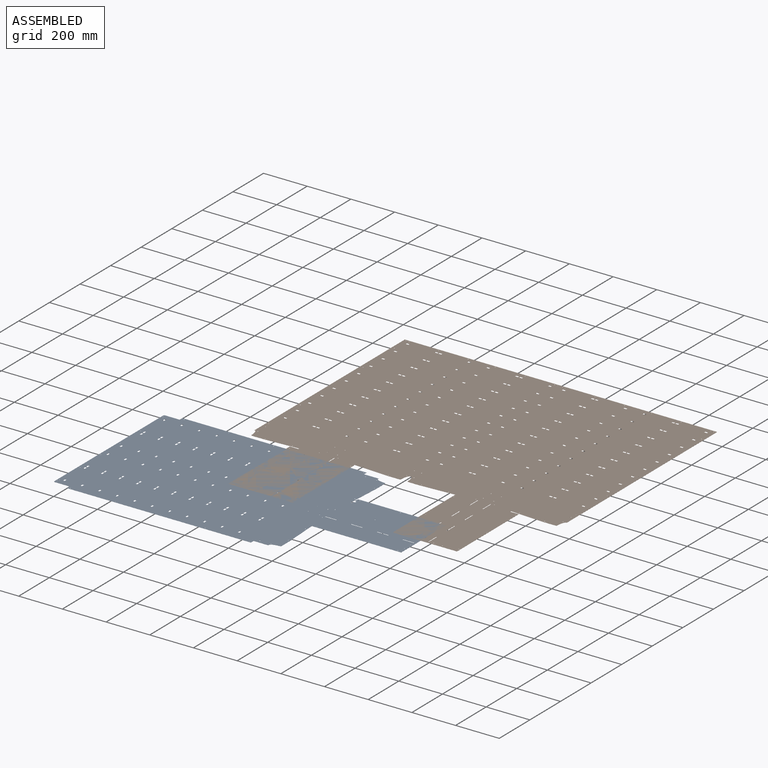
[diagram: assembled view]
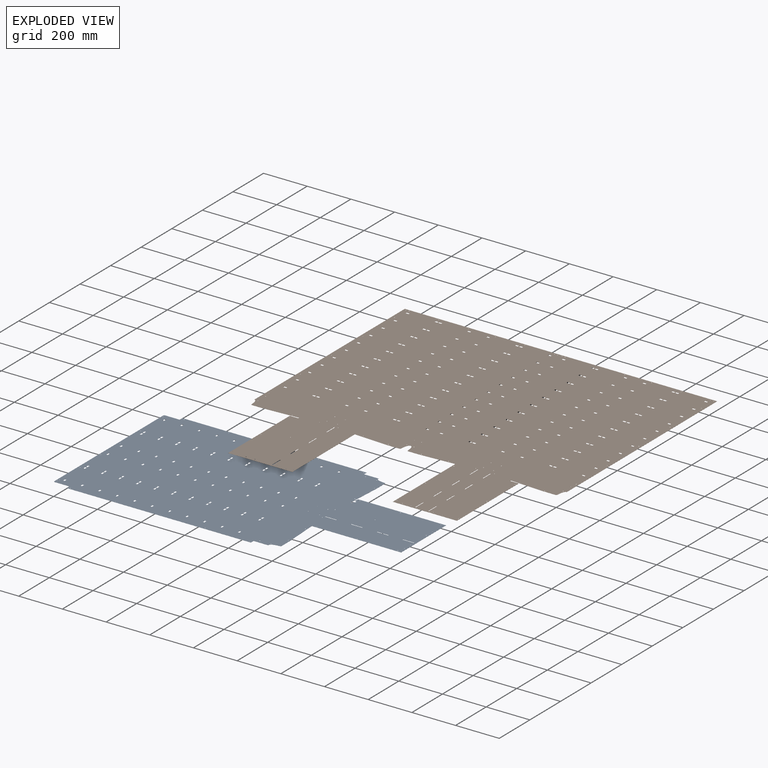
[diagram: exploded view]
GUIDED TOUR — FREECAD ASSEMBLY "composit_full_size3_composit_sink_fix"

This assembly has 2 components, labeled P0..P1 below (a component is one placed body or linked part; the same part can appear more than once), held together by 0 modeled joints plus 1 derived contact edge. A joint is a constraint between two components; its type names the relative motion it leaves free:
  CONTACT — a derived adjacency edge — the two components touch in the source model (clearance under 2% of the assembly's diagonal); it is measured from the geometry, not a modeled constraint.
Axis/direction vectors are unit vectors and 'through' points are millimeter coordinates, both in the assembly's world frame.

MATES
  1. CONTACT "contact_0_1": P0 <-> P1, contact direction (0.000, 0.000, 1.000) through (-684.06, 180.67, 0.30) mm (derived from contact, not a modeled constraint)

ASSEMBLY ORDER
  1. P1 — the base component [order verified]
  2. P0 [order verified]
Order-tag legend:
  [order verified] — this step's position reverses a verified removal order: the component was checked to insert without passing through the ones already placed.

Of the 2 components, 2 carry a construction recipe — the FreeCAD feature program (sketches with constraints, then the solid features that consume them) that regenerates the part from scratch, quoted from this document or from the linked companion document it references; the rest are supplied as boundary geometry only. The tour below walks the components in assembly order: each is shown spotlighted twice — in the assembled view, then in the exploded view, where a leader line traces a displaced component back to its assembled socket (components that stay in place when exploded have no leader line; saturated green if recipe-attached, orange if geometry-only; every other component desaturated gray) — followed by its recipe or geometry summary and the mates that hold it.
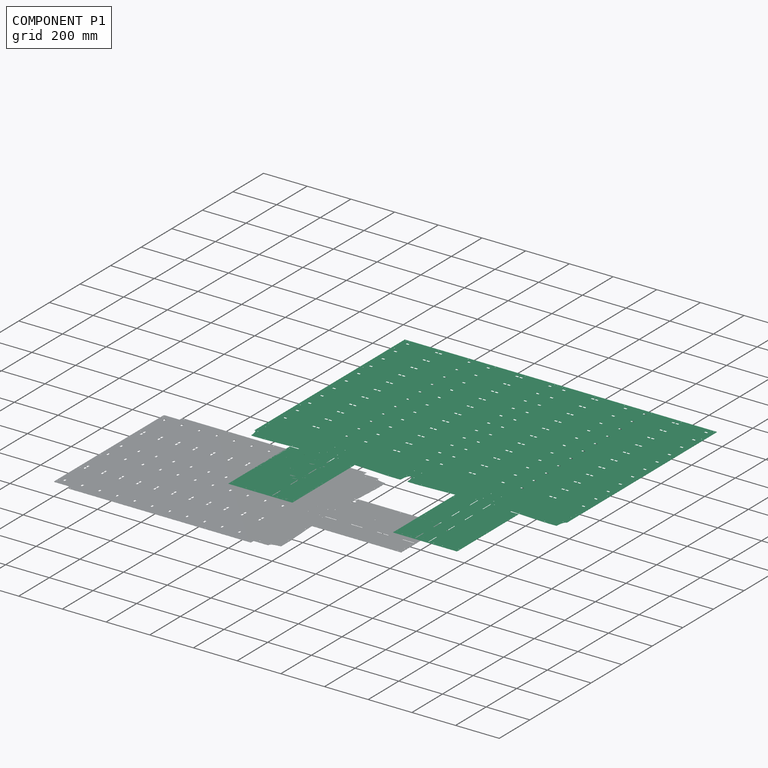
[diagram: component P1 — assembled]
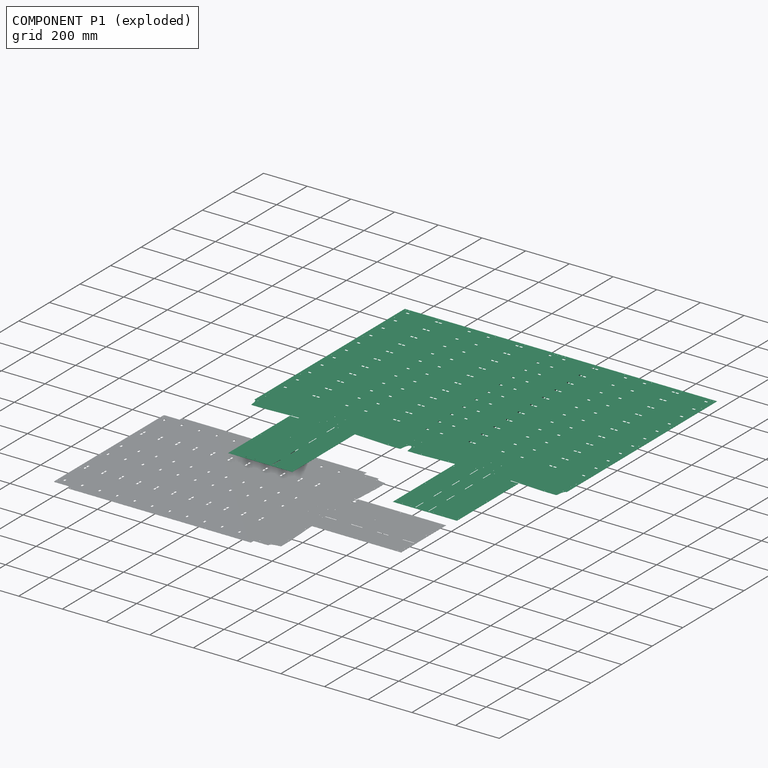
[diagram: component P1 — exploded]
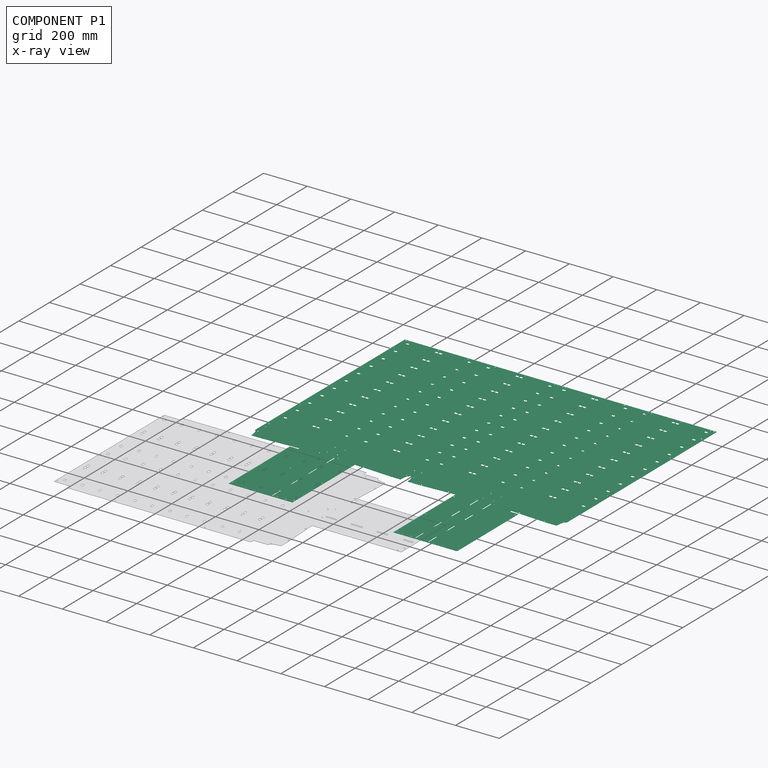
[diagram: component P1 — x-ray view]
COMPONENT P1 — recipe-attached ("part2_body", modeled in this document).
Held by: resting contact with P0 (derived edge).
Construction recipe (the document's own serialized feature program — sketch geometry with constraints, then the solid features built on it; lengths are millimeters unless a unit is written):

FEATURE [PartDesign::FeatureBase] BaseFeature001
  BaseFeature = -> Unfold
  Placement = pos=(0,0,351.872) rot=(0.377964,0.654654,0.654654;3.86433rad)
  expr: BaseFeature = <<part2_unfold>>._self
  expr: Placement = .BaseFeature.Placement
FEATURE [PartDesign::SubShapeBinder] Binder
  BindCopyOnChange = 0
  BindMode = 0
  ClaimChildren = false
  Context = -> Body001 [Binder.]
  Fuse = false
  MakeFace = true
  OffsetFill = false
  OffsetIntersection = false
  OffsetJoinType = 0
  OffsetOpenResult = false
  PartialLoad = false
  Relative = true
  Support = -> [Link020[Edge8]]
  _Version = 2
FEATURE [PartDesign::Plane] DatumPlane
  AttachmentOffset = pos=(0,0,0) rot=(0,1,0;1.5708rad)
  Length = 1721.32
  MapMode = 7
  Placement = pos=(-357.54,1428,0) rot=(-0.57735,0.57735,0.57735;4.18879rad)
  ResizeMode = 0
  Support = -> [Binder]
  Width = 1507.11
FEATURE [Sketcher::SketchObject] Sketch002
  ExternalGeometry = -> [BaseFeature001]
  FullyConstrained = true
  MapMode = 5
  Support = -> [XY_Plane001]
  sketch-geometry (4):
    g0: Circle CenterX=23.47 CenterY=444 CenterZ=0 NormalX=0 NormalY=0 NormalZ=1 AngleXU=0 Radius=1.7
    g1: Circle CenterX=23.47 CenterY=494 CenterZ=0 NormalX=0 NormalY=0 NormalZ=1 AngleXU=0 Radius=1.7
    g2: Circle CenterX=341.123 CenterY=444 CenterZ=0 NormalX=0 NormalY=0 NormalZ=1 AngleXU=0 Radius=1.7
    g3: Circle CenterX=341.123 CenterY=494 CenterZ=0 NormalX=0 NormalY=0 NormalZ=1 AngleXU=0 Radius=1.7
  constraints (12):
    c: DistanceX(g-6,g0) = -2.4
    c: Horizontal(g-6,g0)
    c: Horizontal(g-3,g1)
    c: Vertical(g0,g1)
    c: DistanceX(g-5,g2) = -2
    c: Horizontal(g-5,g2)
    c: Vertical(g2,g3)
    c: Horizontal(g-4,g3)
    c: Equal(g-6,g0)
    c: Equal(g0,g1)
    c: Equal(g1,g3)
    c: Equal(g3,g2)
FEATURE [Sketcher::SketchObject] Sketch003
  FullyConstrained = false
  MapMode = 5
  Placement = pos=(-1.953e-13,1.109e-13,0.000421097) rot=(0,1,0;3.14159rad)
  Support = -> [BaseFeature001]
  sketch-geometry (4):
    g0: LineSegment StartX=-22.8537 StartY=440.301 StartZ=0 EndX=-345.754 EndY=440.301 EndZ=0
    g1: LineSegment StartX=-345.754 StartY=440.301 StartZ=0 EndX=-345.754 EndY=497.568 EndZ=0
    g2: LineSegment StartX=-345.754 StartY=497.568 StartZ=0 EndX=-22.8537 EndY=497.568 EndZ=0
    g3: LineSegment StartX=-22.8537 StartY=497.568 StartZ=0 EndX=-22.8537 EndY=440.301 EndZ=0
  constraints (8):
    c: Coincident(g0,g1)
    c: Coincident(g1,g2)
    c: Coincident(g2,g3)
    c: Coincident(g3,g0)
    c: Horizontal(g0)
    c: Horizontal(g2)
    c: Vertical(g1)
    c: Vertical(g3)
FEATURE [PartDesign::Pad] Pad001
  BaseFeature = -> BaseFeature001
  Direction = (-6e-16,3e-16,-1)
  Length = 10
  Length2 = 10
  Placement = pos=(0,0,351.872) rot=(0.377964,0.654654,0.654654;3.86433rad)
  Profile = -> Sketch003
  ReferenceAxis = -> Sketch003 [N_Axis]
  Reversed = true
  Type = 2
FEATURE [PartDesign::Pocket] Pocket001
  BaseFeature = -> Pad001
  Direction = (0,0,-1)
  Length = 5
  Length2 = 5
  Midplane = true
  Placement = pos=(0,0,351.872) rot=(0.377964,0.654654,0.654654;3.86433rad)
  Profile = -> Sketch002
  ReferenceAxis = -> Sketch002 [N_Axis]
  Type = 1
FEATURE [PartDesign::Mirrored] Mirrored001
  MirrorPlane = -> YZ_Plane001
  Placement = pos=(0,0,351.872) rot=(0.377964,0.654654,0.654654;3.86433rad)
FEATURE [PartDesign::Mirrored] Mirrored002
  MirrorPlane = -> DatumPlane
  Placement = pos=(0,0,351.872) rot=(0.377964,0.654654,0.654654;3.86433rad)
FEATURE [PartDesign::MultiTransform] MultiTransform
  BaseFeature = -> Pocket001
  Originals = -> [Pad001,Pocket001]
  Placement = pos=(0,0,351.872) rot=(0.377964,0.654654,0.654654;3.86433rad)
  Transformations = -> [Mirrored001,Mirrored002]
FEATURE [PartDesign::Body] Body001  label="part2_body"
  BaseFeature = -> Unfold
  Group = -> [BaseFeature001,Binder,DatumPlane,Sketch002,Sketch003,Pad001,Pocket001,MultiTransform,Mirrored001,Mirrored002]
  Origin = -> Origin001
  Tip = -> MultiTransform
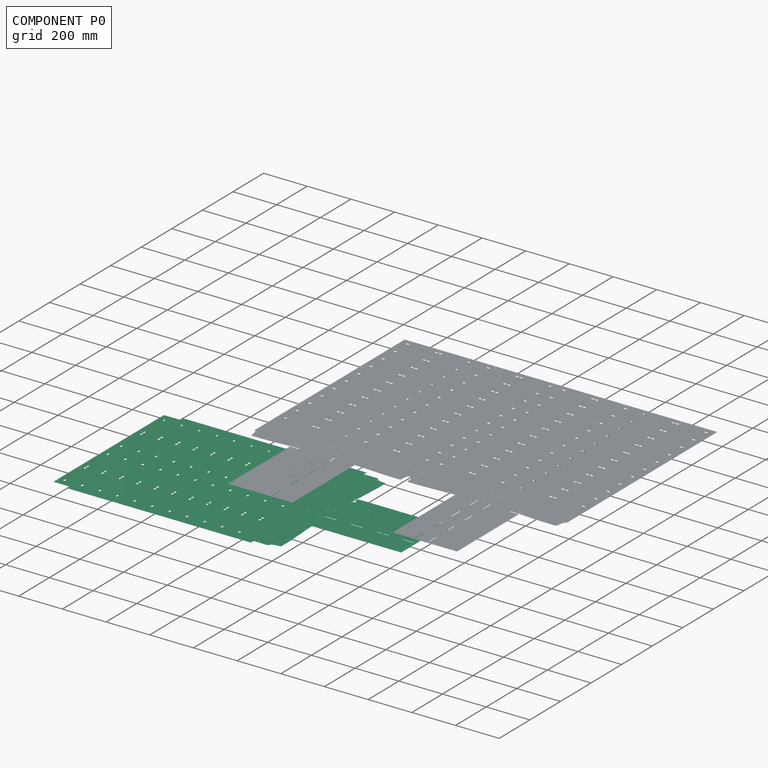
[diagram: component P0 — assembled]
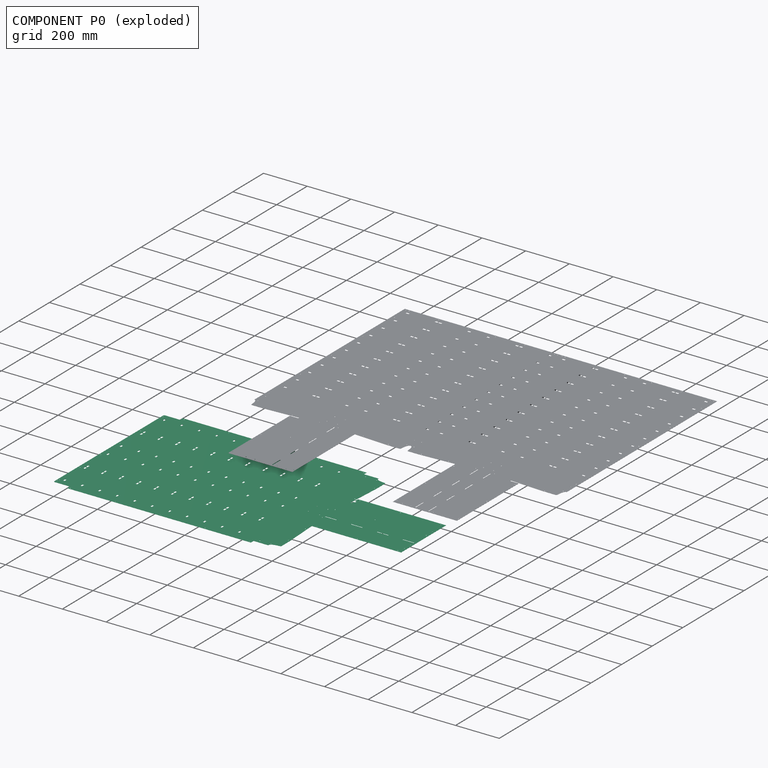
[diagram: component P0 — exploded]
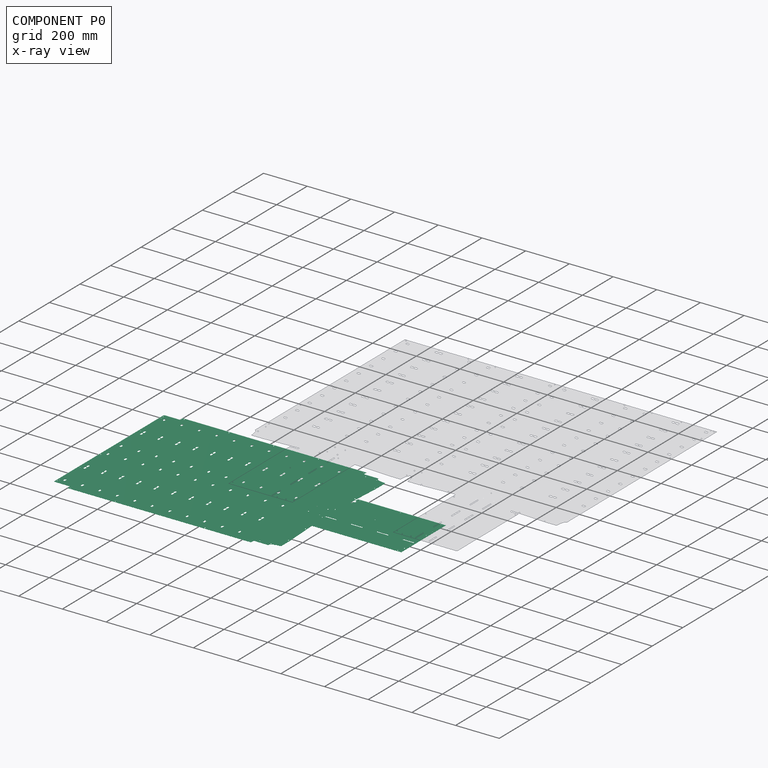
[diagram: component P0 — x-ray view]
COMPONENT P0 — recipe-attached ("part1_body", modeled in this document).
Held by: resting contact with P1 (derived edge).
Construction recipe (the document's own serialized feature program — sketch geometry with constraints, then the solid features built on it; lengths are millimeters unless a unit is written):

FEATURE [PartDesign::FeatureBase] BaseFeature
  BaseFeature = -> Unfold012
  Placement = pos=(0,0,351.872) rot=(0.57735,0.57735,-0.57735;4.18879rad)
  expr: BaseFeature = <<part1_unfold>>._self
  expr: Placement = .BaseFeature.Placement
FEATURE [Sketcher::SketchObject] Sketch
  ExternalGeometry = -> [BaseFeature]
  FullyConstrained = true
  MapMode = 5
  Support = -> [XY_Plane]
  sketch-geometry (4):
    g0: Circle CenterX=-494 CenterY=345.523 CenterZ=0 NormalX=0 NormalY=0 NormalZ=1 AngleXU=0 Radius=1.7
    g1: Circle CenterX=-444 CenterY=345.523 CenterZ=0 NormalX=0 NormalY=0 NormalZ=1 AngleXU=0 Radius=1.7
    g2: Circle CenterX=-494 CenterY=27.87 CenterZ=0 NormalX=0 NormalY=0 NormalZ=1 AngleXU=0 Radius=1.7
    g3: Circle CenterX=-444 CenterY=27.87 CenterZ=0 NormalX=0 NormalY=0 NormalZ=1 AngleXU=0 Radius=1.7
  constraints (12):
    c: Vertical(g-5,g0)
    c: Vertical(g-6,g1)
    c: DistanceY(g-5,g0) = 2.4
    c: Horizontal(g0,g1)
    c: DistanceY(g-3,g2) = 2
    c: Vertical(g-3,g2)
    c: Horizontal(g2,g3)
    c: Vertical(g-4,g3)
    c: Equal(g-3,g2)
    c: Equal(g2,g3)
    c: Equal(g3,g1)
    c: Equal(g1,g0)
FEATURE [Sketcher::SketchObject] Sketch001
  FullyConstrained = false
  MapMode = 5
  Placement = pos=(-1.76e-14,1.76e-14,2.10968e-05) rot=(-0.707107,0.707107,0;3.14159rad)
  Support = -> [BaseFeature]
  sketch-geometry (4):
    g0: LineSegment StartX=-346.673 StartY=497.828 StartZ=0 EndX=-20.2676 EndY=497.828 EndZ=0
    g1: LineSegment StartX=-20.2676 StartY=497.828 StartZ=0 EndX=-20.2676 EndY=440.388 EndZ=0
    g2: LineSegment StartX=-20.2676 StartY=440.388 StartZ=0 EndX=-346.673 EndY=440.388 EndZ=0
    g3: LineSegment StartX=-346.673 StartY=440.388 StartZ=0 EndX=-346.673 EndY=497.828 EndZ=0
  constraints (8):
    c: Coincident(g0,g1)
    c: Coincident(g1,g2)
    c: Coincident(g2,g3)
    c: Coincident(g3,g0)
    c: Horizontal(g0)
    c: Horizontal(g2)
    c: Vertical(g1)
    c: Vertical(g3)
FEATURE [PartDesign::Pad] Pad
  BaseFeature = -> BaseFeature
  Direction = (0,0,-1)
  Length = 10
  Length2 = 10
  Placement = pos=(0,0,351.872) rot=(0.57735,0.57735,-0.57735;4.18879rad)
  Profile = -> Sketch001
  ReferenceAxis = -> Sketch001 [N_Axis]
  Refine = true
  Reversed = true
  Type = 2
FEATURE [PartDesign::Pocket] Pocket
  BaseFeature = -> Pad
  Direction = (0,0,-1)
  Length = 5
  Length2 = 5
  Midplane = true
  Placement = pos=(0,0,351.872) rot=(0.57735,0.57735,-0.57735;4.18879rad)
  Profile = -> Sketch
  ReferenceAxis = -> Sketch [N_Axis]
  Type = 1
FEATURE [PartDesign::Mirrored] Mirrored
  BaseFeature = -> Pocket
  MirrorPlane = -> XZ_Plane
  Originals = -> [Pad,Pocket]
  Placement = pos=(0,0,351.872) rot=(0.57735,0.57735,-0.57735;4.18879rad)
  Refine = true
FEATURE [PartDesign::Body] Body  label="part1_body"
  BaseFeature = -> Unfold012
  Group = -> [BaseFeature,Sketch,Sketch001,Pad,Pocket,Mirrored]
  Origin = -> Origin
  Tip = -> Mirrored
PROVENANCE & LICENSES
Assembly and component geometry: a FreeCAD (.FCStd) document from a public repository crawl; components, placements and joints were extracted with FreeCAD and each solid tessellated.
Construction recipes: the document's own serialized feature recipes (and, for linked parts, the recipes of companion documents from the same project).
License: as declared in the source repository (recorded in the dataset sidecar).
Joints: native FreeCAD joints and A2plus constraints are mapped to standard mate types; edges marked 'derived from contact' connect touching components and are measured from the geometry, not modeled.
Verification: 2 of this assembly's 2 components carry a construction recipe (2 from this document itself); the rest are geometry-only. Every component's tessellation passed the extraction mesh gates (mesh-volume checksum against the B-rep where available, bounding-box inflation <= 2%).
Renders: orthographic iso camera (az 35 / el 25); the floor grid conveys scale (grid pitch printed in each image; no ruler). In the exploded view each component is displaced by its stored offset vector: the offsets alone carry the explosion direction (mate normal/axis signs are not orientation cues and do not encode it), and separation distances are assigned per mate-chain, not proportionally to assembly-order depth.
